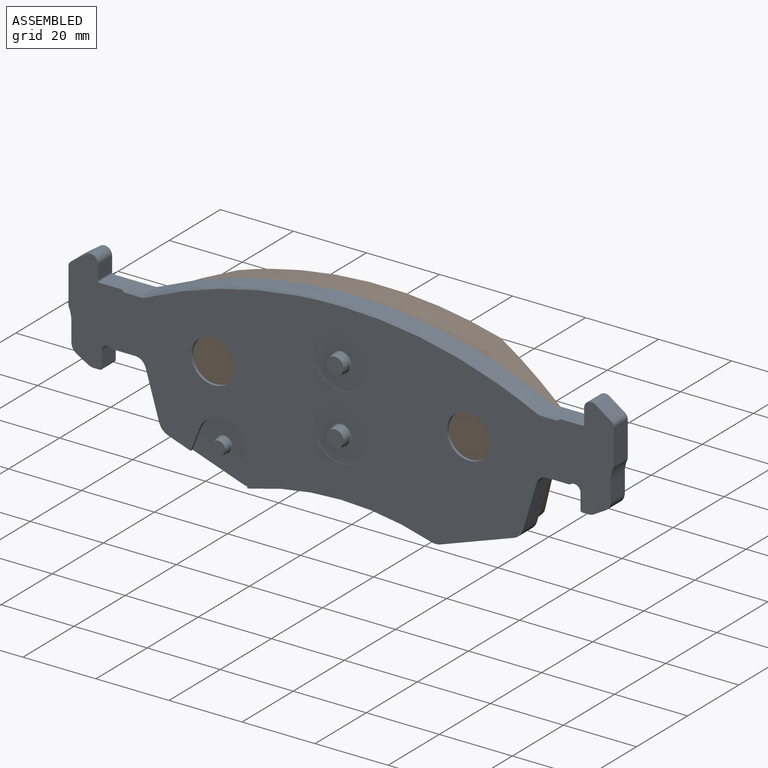
[diagram: assembled view]
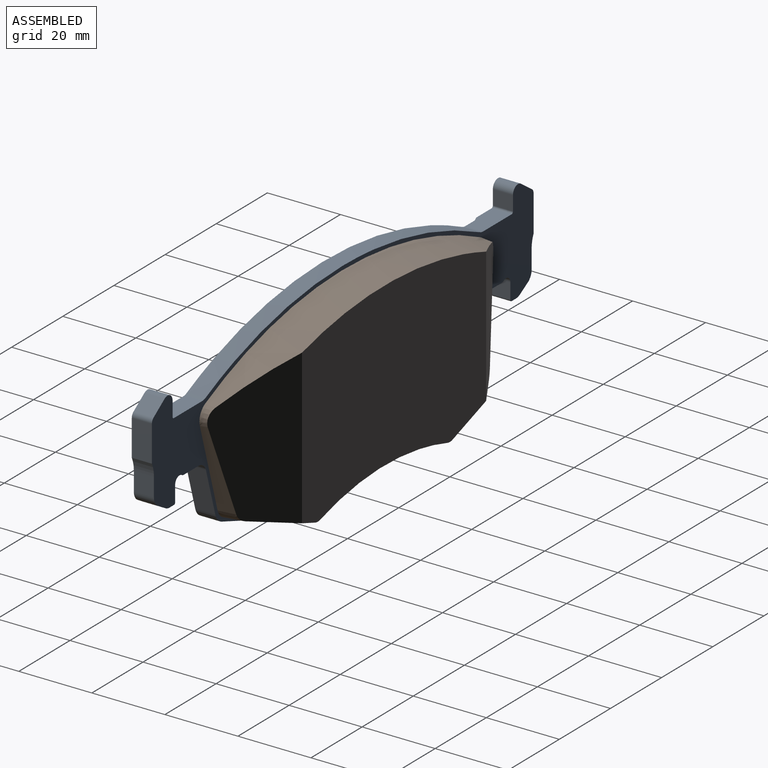
[diagram: assembled view, second angle]
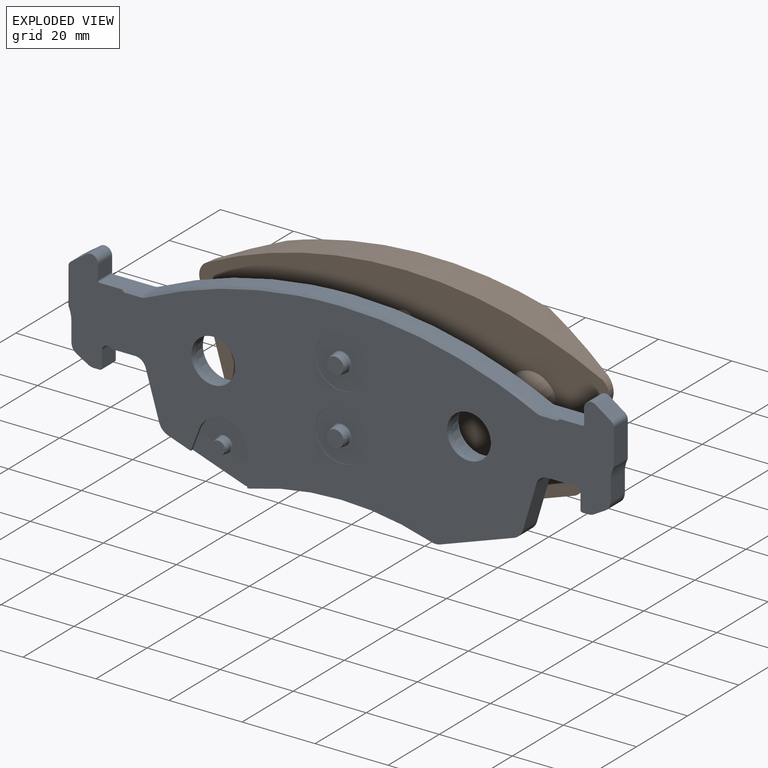
[diagram: exploded view]
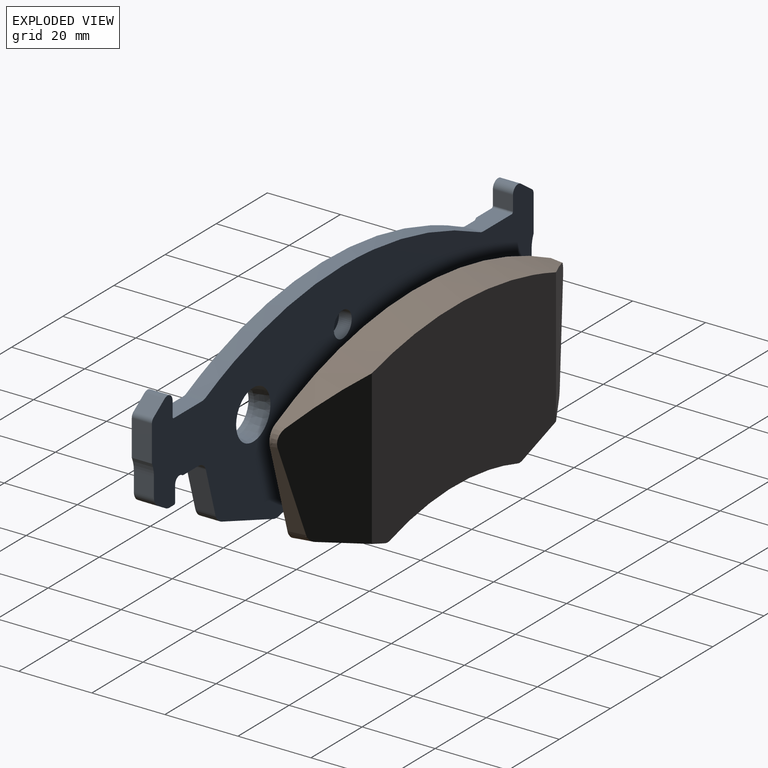
[diagram: exploded view, second angle]
ASSEMBLY  parts=2 mates=2
PART A: 89 faces, bbox 149.5x8x52.7 mm
  f0: plane 4.63x4.58mm, normal (0,-1,0), area 16.4mm2, adj f2
  f1: plane 4.63x4.58mm, normal (0,-1,0), area 16.4mm2, adj f3
  f2: cone r=0mm half-angle=12deg, axis (0,1,0), area 15.4mm2, adj f0,f5
  f3: cone r=0mm half-angle=12deg, axis (0,1,0), area 15.4mm2, adj f1,f6
  f4: plane 3.62x3.58mm, normal (0,-1,0), area 10mm2, adj f7
  f5: cylinder r=2.5mm len=5mm, axis (0,1,0), area 17.3mm2, adj f2,f8
  f6: cylinder r=2.5mm len=5mm, axis (0,1,0), area 17.3mm2, adj f3,f9
  f7: cone r=0mm half-angle=12deg, axis (0,1,0), area 12.2mm2, adj f4,f13
  f8: torus R=2.8mm, axis (0,1,0), area 7.7mm2, adj f5,f14
  f9: torus R=2.8mm, axis (0,1,0), area 7.7mm2, adj f6,f15
  f10: plane 6.59x6.5mm, normal (0,1,0), area 33.2mm2, adj f19
  f11: plane 7.13x7mm, normal (0,1,0), area 38.5mm2, adj f22
  f12: plane 7.13x7mm, normal (0,1,0), area 38.5mm2, adj f23
  f13: cylinder r=2mm len=4mm, axis (0,1,0), area 12.6mm2, adj f7,f24
  f14: plane 14.26x14mm, normal (0,-1,0), area 129.3mm2, adj f8,f79
  f15: plane 14.26x14mm, normal (0,-1,0), area 129.3mm2, adj f9,f80
  f16: cylinder r=3mm len=4.9mm, axis (0,-1,0), area 6.6mm2, adj f17,f45,f48,f82
  f17: cylinder r=124mm len=107.27mm, axis (0,1,0), area 543.6mm2, adj f16,f18,f49,f82
  f18: cylinder r=3mm len=4.9mm, axis (0,1,0), area 6.6mm2, adj f17,f50,f53,f82
  f19: cylinder r=3.25mm len=6.5mm, axis (0,1,0), area 60.2mm2, adj f10,f82
  f20: cone r=6mm half-angle=10deg, axis (0,1,0), area 162.1mm2, adj f77,f82
  f21: cone r=6mm half-angle=10deg, axis (0,1,0), area 162.1mm2, adj f78,f82
  f22: cylinder r=3.5mm len=7mm, axis (0,1,0), area 77mm2, adj f11,f82
  f23: cylinder r=3.5mm len=7mm, axis (0,1,0), area 77mm2, adj f12,f82
  f24: torus R=2.3mm, axis (0,1,0), area 6.2mm2, adj f13,f84
  f25: cylinder r=4mm len=5.5mm, axis (0,-1,0), area 20.9mm2, adj f26,f81,f82,f86
  f26: plane 12.48x5.5mm, normal (-0.96,0,-0.28), area 71.6mm2, adj f25,f27,f82,f86
  f27: cylinder r=3mm len=5.5mm, axis (0,-1,0), area 21.2mm2, adj f26,f28,f82,f86
  f28: plane 5.89x5.5mm, normal (0,0,-1), area 32.4mm2, adj f27,f29,f82,f86
  f29: cylinder r=1mm len=5.5mm, axis (0,-1,0), area 3.4mm2, adj f28,f30,f82,f86
  f30: cylinder r=1.7mm len=5.5mm, axis (0,-1,0), area 20.5mm2, adj f29,f31,f82,f86
  f31: plane 5.5x4.3mm, normal (1,0,0), area 23.6mm2, adj f30,f32,f82,f86
  f32: cylinder r=0.5mm len=5.5mm, axis (0,-1,0), area 4.3mm2, adj f31,f33,f82,f86
  f33: plane 5.5x1.7mm, normal (0,0,-1), area 9.3mm2, adj f32,f34,f82,f86
  f34: cylinder r=3mm len=5.5mm, axis (0,-1,0), area 8.6mm2, adj f33,f35,f82,f86
  f35: plane 5.5x3.1mm, normal (-0.5,0,-0.87), area 19.7mm2, adj f34,f36,f82,f86
  f36: cylinder r=3mm len=5.5mm, axis (0,-1,0), area 17.3mm2, adj f35,f37,f82,f86
  f37: plane 5.5x5.22mm, normal (-1,0,0), area 28.7mm2, adj f36,f38,f82,f86
  f38: cylinder r=8mm len=5.5mm, axis (0,-1,0), area 19.8mm2, adj f37,f39,f82,f86
  f39: plane 9.87x5.5mm, normal (-1,0,0), area 54.3mm2, adj f38,f40,f82,f86
  f40: cylinder r=1.6mm len=5.5mm, axis (0,-1,0), area 8.4mm2, adj f39,f41,f82,f86
  f41: plane 5.5x4.27mm, normal (-0.57,0,0.82), area 28.7mm2, adj f40,f42,f82,f86
  f42: cylinder r=2mm len=5.5mm, axis (0,-1,0), area 24mm2, adj f41,f43,f82,f86
  f43: plane 5.5x4.03mm, normal (1,0,0), area 22.2mm2, adj f42,f44,f82,f86
  f44: cylinder r=0.5mm len=5.5mm, axis (0,-1,0), area 4.3mm2, adj f43,f45,f82,f86
  f45: plane 11.25x5.63mm, normal (0,0,1), area 58.2mm2, adj f16,f44,f46,f47,f82,f86
  f46: bspline ~1.61x1.01mm, area 0.6mm2, adj f45,f47,f86
  f47: plane 4.38x0.62mm, normal (0,-0.71,0.71), area 3.5mm2, adj f45,f46,f48,f86
  f48: cone r=3mm half-angle=45deg, axis (0,-1,0), area 1.3mm2, adj f16,f47,f49,f86
  f49: cone r=123.4mm half-angle=45deg, axis (0,1,0), area 93.9mm2, adj f17,f48,f50,f86
  f50: cone r=3mm half-angle=45deg, axis (0,-1,0), area 1.3mm2, adj f18,f49,f51,f86
  f51: plane 4.38x0.62mm, normal (0,-0.71,0.71), area 3.5mm2, adj f50,f52,f53,f86
  f52: bspline ~1.61x1.01mm, area 0.6mm2, adj f51,f53,f86
  f53: plane 11.25x5.63mm, normal (0,0,1), area 58.2mm2, adj f18,f51,f52,f54,f82,f86
  f54: cylinder r=0.5mm len=5.5mm, axis (0,1,0), area 4.3mm2, adj f53,f55,f82,f86
  f55: plane 5.5x4.03mm, normal (-1,0,0), area 22.2mm2, adj f54,f56,f82,f86
  f56: cylinder r=2mm len=5.5mm, axis (0,1,0), area 24mm2, adj f55,f57,f82,f86
  f57: plane 5.5x4.27mm, normal (0.57,0,0.82), area 28.7mm2, adj f56,f58,f82,f86
  f58: cylinder r=1.6mm len=5.5mm, axis (0,1,0), area 8.4mm2, adj f57,f59,f82,f86
  f59: plane 9.87x5.5mm, normal (1,0,0), area 54.3mm2, adj f58,f60,f82,f86
  f60: cylinder r=8mm len=5.5mm, axis (0,1,0), area 19.8mm2, adj f59,f61,f82,f86
  f61: plane 5.5x5.22mm, normal (1,0,0), area 28.7mm2, adj f60,f62,f82,f86
  f62: cylinder r=3mm len=5.5mm, axis (0,1,0), area 17.3mm2, adj f61,f63,f82,f86
  f63: plane 5.5x3.1mm, normal (0.5,0,-0.87), area 19.7mm2, adj f62,f64,f82,f86
  f64: cylinder r=3mm len=5.5mm, axis (0,1,0), area 8.6mm2, adj f63,f65,f82,f86
  f65: plane 5.5x1.7mm, normal (0,0,-1), area 9.3mm2, adj f64,f66,f82,f86
  f66: cylinder r=0.5mm len=5.5mm, axis (0,1,0), area 4.3mm2, adj f65,f67,f82,f86
  f67: plane 5.5x4.3mm, normal (-1,0,0), area 23.6mm2, adj f66,f68,f82,f86
  f68: cylinder r=1.7mm len=5.5mm, axis (0,1,0), area 20.5mm2, adj f67,f69,f82,f86
  f69: cylinder r=1mm len=5.5mm, axis (0,1,0), area 3.4mm2, adj f68,f70,f82,f86
  f70: plane 5.89x5.5mm, normal (0,0,-1), area 32.4mm2, adj f69,f71,f82,f86
  f71: cylinder r=3mm len=5.5mm, axis (0,1,0), area 21.2mm2, adj f70,f72,f82,f86
  f72: plane 12.48x5.5mm, normal (0.96,0,-0.28), area 71.6mm2, adj f71,f73,f82,f86
  f73: cylinder r=4mm len=5.5mm, axis (0,1,0), area 20.9mm2, adj f72,f74,f82,f86
  f74: plane 20.13x7.03mm, normal (0.33,0,-0.94), area 117.3mm2, adj f73,f75,f82,f86
  f75: cylinder r=4mm len=5.5mm, axis (0,1,0), area 14.2mm2, adj f74,f82,f83,f86
  f76: plane 6.08x2.34mm, normal (0.93,0,-0.36), area 4.9mm2, adj f81,f84,f85,f86
  f77: cylinder r=6mm len=12mm, axis (0,-1,0), area 56.5mm2, adj f20,f86
  f78: cylinder r=6mm len=12mm, axis (0,1,0), area 56.5mm2, adj f21,f86
  f79: cylinder r=7mm len=14mm, axis (0,1,0), area 4.4mm2, adj f14,f86
  f80: cylinder r=7mm len=14mm, axis (0,1,0), area 4.4mm2, adj f15,f86
  f81: plane 20.13x7.03mm, normal (-0.33,0,-0.94), area 106.2mm2, adj f25,f76,f82,f84,f86,f87
  f82: plane 149.3x52.54mm, normal (0,1,0), area 5170.2mm2, adj f16,f17,f18,f19,f20,f21,f22,f23
  f83: cylinder r=81mm len=49.29mm, axis (0,1,0), area 275.4mm2, adj f75,f82,f86,f87
  f84: plane 15.66x15.48mm, normal (0,-1,0), area 152mm2, adj f24,f76,f81,f85,f87,f88
  f85: cylinder r=6.8mm len=13.15mm, axis (0,1,0), area 14.2mm2, adj f76,f84,f86,f88
  f86: plane 149.48x52.12mm, normal (0,-1,0), area 4786.4mm2, adj f25,f26,f27,f28,f29,f30,f31,f32
  f87: cylinder r=4mm len=5.5mm, axis (0,-1,0), area 13.1mm2, adj f81,f82,f83,f84,f86,f88
  f88: plane 8.76x0.75mm, normal (-1,0,0), area 6.6mm2, adj f84,f85,f86,f87
PART B: 28 faces, bbox 112.7x16.3x51.5 mm
  f0: plane 12.22x12mm, normal (0,-1,0), area 113.1mm2, adj f3
  f1: plane 12.16x12mm, normal (0,-1,0), area 113.1mm2, adj f4
  f2: plane 6.59x6.5mm, normal (0,-1,0), area 33.2mm2, adj f9
  f3: cylinder r=6mm len=12mm, axis (0,1,0), area 30.2mm2, adj f0,f10
  f4: cylinder r=6mm len=12mm, axis (0,1,0), area 30.2mm2, adj f1,f11
  f5: plane 7.13x7mm, normal (0,-1,0), area 38.5mm2, adj f12
  f6: plane 7.13x7mm, normal (0,-1,0), area 38.5mm2, adj f13
  f7: plane 23.63x7.36mm, normal (0.96,0.09,-0.28), area 85mm2, adj f8,f18,f19,f20
  f8: cone r=3.5mm half-angle=5deg, axis (0,-1,0), area 18.9mm2, adj f7,f14,f18,f20
  f9: cylinder r=3.25mm len=6.5mm, axis (0,1,0), area 60.2mm2, adj f2,f20
  f10: cone r=0mm half-angle=10deg, axis (0,1,0), area 162.1mm2, adj f3,f20
  f11: cone r=0mm half-angle=10deg, axis (0,1,0), area 162.1mm2, adj f4,f20
  f12: cylinder r=3.5mm len=7mm, axis (0,1,0), area 77mm2, adj f5,f20
  f13: cylinder r=3.5mm len=7mm, axis (0,1,0), area 77mm2, adj f6,f20
  f14: plane 19.66x11.2mm, normal (0.33,0.09,-0.94), area 188.8mm2, adj f8,f15,f18,f20,f21
  f15: cone r=3.02mm half-angle=5deg, axis (0,-1,0), area 25.3mm2, adj f14,f16,f20,f21
  f16: cone r=82mm half-angle=5deg, axis (0,1,0), area 566.2mm2, adj f15,f17,f20,f21
  f17: cone r=3.02mm half-angle=5deg, axis (0,-1,0), area 25.3mm2, adj f16,f20,f21,f22
  f18: plane 42.45x24.18mm, normal (0.36,0.93,0), area 790.8mm2, adj f7,f8,f14,f19,f21,f26
  f19: cone r=3.75mm half-angle=5deg, axis (0,-1,0), area 12.3mm2, adj f7,f18,f20,f26
  f20: plane 112.39x51.25mm, normal (0,-1,0), area 4150.2mm2, adj f7,f8,f9,f10,f11,f12,f13,f14
  f21: plane 72x48.82mm, normal (0,1,0), area 3184.6mm2, adj f14,f15,f16,f17,f18,f22,f26,f27
  f22: plane 19.66x11.2mm, normal (-0.33,0.09,-0.94), area 218.3mm2, adj f17,f20,f21,f23,f27
  f23: cone r=3.34mm half-angle=5deg, axis (0,-1,0), area 24.4mm2, adj f20,f22,f24,f27
  f24: plane 23.63x7.49mm, normal (-0.96,0.09,-0.28), area 103.4mm2, adj f20,f23,f25,f27
  f25: cone r=3.72mm half-angle=5deg, axis (0,-1,0), area 12.8mm2, adj f20,f24,f26,f27
  f26: cone r=121.02mm half-angle=5deg, axis (0,-1,0), area 1095.1mm2, adj f18,f19,f20,f21,f25,f27
  f27: plane 37.24x16.26mm, normal (-0.5,0.87,0), area 476.9mm2, adj f21,f22,f23,f24,f25,f26
PLACE A t=(-1.57,-1.91,5.77)mm fixed
PLACE B rot(axis=(0,-1,0),0deg) t=(-1.57,3.64,5.77)mm
MATE cylindrical B.f13 <-> A.f6  axis (0,-1,0) through (-1.57,3.64,-5.33)mm
MATE cylindrical B.f4 <-> A.f21  axis (0,-1,0) through (33.43,-1.16,3.67)mm
